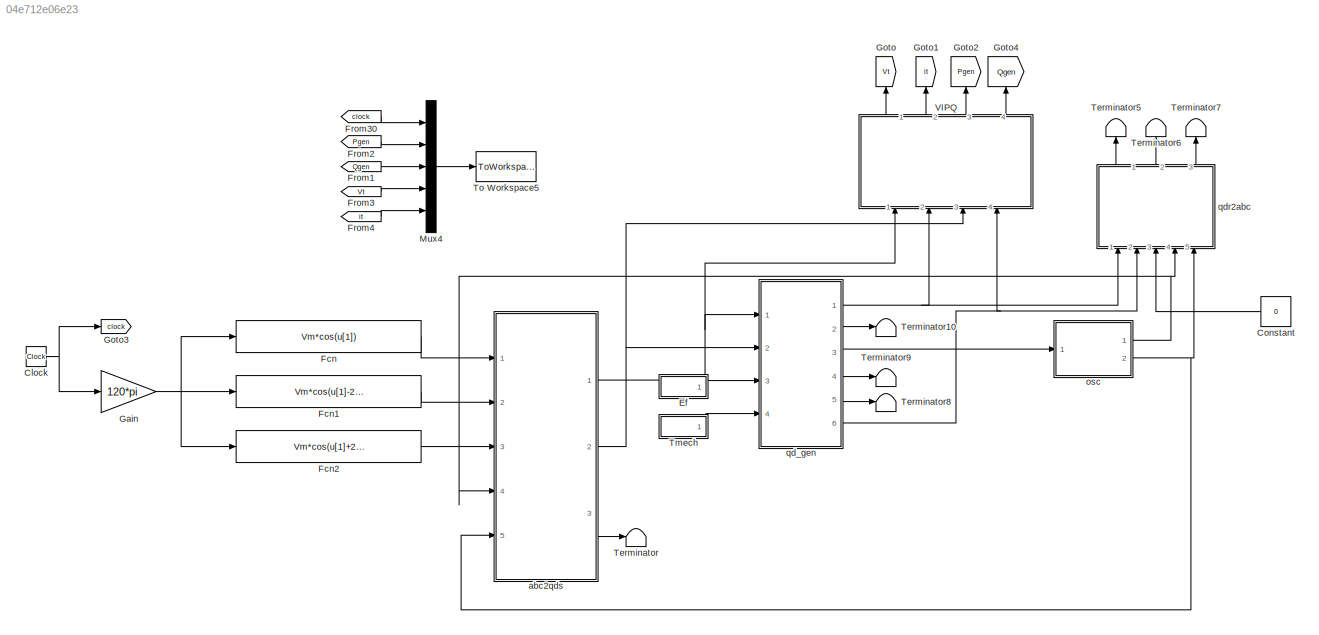
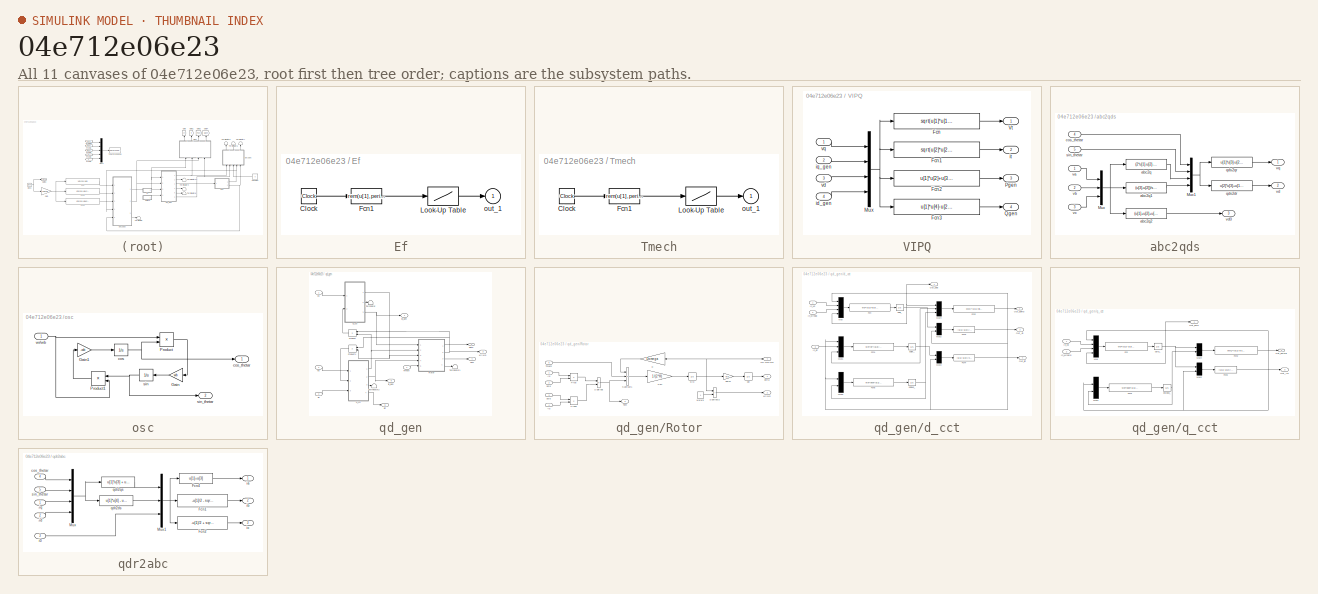
[diagram: thumbnail index - all 11 canvases of the model, root first then tree order]
MODEL slx_04e712e06e23
KIND model
CONFIG AbsTol = auto
CONFIG EnableMultiTasking = off
CONFIG FixedStep = auto
CONFIG MaxStep = 10e-4
CONFIG MinStep = auto
CONFIG RelTol = 1e-3
CONFIG SampleTimeConstraint = Unconstrained
CONFIG Solver = VariableStepAuto
CONFIG SolverName = VariableStepAuto
CONFIG StartTime = 0.0
CONFIG StopTime = 5
BLOCK [Clock] Clock
BLOCK [Constant] Constant
  NameLocation = top
  Value = 0
BLOCK [SubSystem] Ef
  Ports = [0, 1]
  RequestExecContextInheritance = off
BLOCK [Clock] Ef/Clock
BLOCK [Fcn] Ef/Fcn1
  Expr = rem(u[1],period)
BLOCK [Lookup] Ef/Look-Up Table
  InputValues = rep_seq_t
  Table = rep_seq_y
BLOCK [Outport] Ef/out_1
  InitialOutput = 0
BLOCK [Fcn] Fcn
  Expr = Vm*cos(u[1])
BLOCK [Fcn] Fcn1
  Expr = Vm*cos(u[1]-2*pi/3)
BLOCK [Fcn] Fcn2
  Expr = Vm*cos(u[1]+2*pi/3)
BLOCK [From] From1
  CloseFcn = tagdialog Close
  GotoTag = Qgen
BLOCK [From] From2
  CloseFcn = tagdialog Close
  GotoTag = Pgen
BLOCK [From] From3
  CloseFcn = tagdialog Close
  GotoTag = Vt
BLOCK [From] From30
  CloseFcn = tagdialog Close
  GotoTag = clock
BLOCK [From] From4
  CloseFcn = tagdialog Close
  GotoTag = it
BLOCK [Gain] Gain
  Gain = 120*pi
BLOCK [Goto] Goto
  GotoTag = Vt
  NameLocation = right
BLOCK [Goto] Goto1
  GotoTag = it
  NameLocation = right
BLOCK [Goto] Goto2
  GotoTag = Pgen
  NameLocation = right
BLOCK [Goto] Goto3
  GotoTag = clock
BLOCK [Goto] Goto4
  GotoTag = Qgen
  NameLocation = right
BLOCK [Mux] Mux4
  DisplayOption = bar
  Inputs = 5
  Ports = [5, 1]
BLOCK [Terminator] Terminator
BLOCK [Terminator] Terminator10
BLOCK [Terminator] Terminator5
  NameLocation = right
BLOCK [Terminator] Terminator6
  NameLocation = right
BLOCK [Terminator] Terminator7
  NameLocation = right
BLOCK [Terminator] Terminator8
BLOCK [Terminator] Terminator9
BLOCK [SubSystem] Tmech
  Ports = [0, 1]
  RequestExecContextInheritance = off
BLOCK [Clock] Tmech/Clock
BLOCK [Fcn] Tmech/Fcn1
  Expr = rem(u[1],period)
BLOCK [Lookup] Tmech/Look-Up Table
  InputValues = rep_seq_t
  Table = rep_seq_y
BLOCK [Outport] Tmech/out_1
  InitialOutput = 0
BLOCK [ToWorkspace] To Workspace5
  MaxDataPoints = inf
  Ports = [1]
  SampleTime = -1
  VariableName = salida
BLOCK [SubSystem] VIPQ
  NameLocation = right
  Ports = [4, 4]
  RequestExecContextInheritance = off
BLOCK [Fcn] VIPQ/Fcn
  Expr = sqrt(u[1]*u[1]+u[3]*u[3])
BLOCK [Fcn] VIPQ/Fcn1
  Expr = sqrt(u[2]*u[2]+u[4]*u[4])
BLOCK [Fcn] VIPQ/Fcn2
  Expr = u[1]*u[2]+u[3]*u[4]
BLOCK [Fcn] VIPQ/Fcn3
  Expr = u[1]*u[4]-u[2]*u[3]
BLOCK [Mux] VIPQ/Mux
  DisplayOption = bar
  Ports = [4, 1]
BLOCK [Outport] VIPQ/Pgen
  Port = 3
BLOCK [Outport] VIPQ/Qgen
  Port = 4
BLOCK [Outport] VIPQ/Vt
BLOCK [Inport] VIPQ/id_gen
  Port = 4
BLOCK [Inport] VIPQ/iq_gen
  Port = 2
BLOCK [Outport] VIPQ/it
  Port = 2
BLOCK [Inport] VIPQ/vd
  Port = 3
BLOCK [Inport] VIPQ/vq
BLOCK [SubSystem] abc2qds
  Ports = [5, 3]
  RequestExecContextInheritance = off
BLOCK [Mux] abc2qds/Mux
  DisplayOption = bar
  Inputs = 3
  Ports = [3, 1]
BLOCK [Mux] abc2qds/Mux1
  DisplayOption = bar
  Ports = [4, 1]
BLOCK [Fcn] abc2qds/abc2q
  Expr = (2*u[1]-u[2]-u[3])/3
BLOCK [Fcn] abc2qds/abc2q1
  Expr = (u[3]-u[2])/sqrt(3)
BLOCK [Fcn] abc2qds/abc2q2
  Expr = (u[1]+u[2]+u[3])/3
BLOCK [Inport] abc2qds/cos_thetar
  Port = 4
BLOCK [Fcn] abc2qds/qds2dr
  Expr = u[2]*u[3]+u[1]*u[4]
BLOCK [Fcn] abc2qds/qds2qr
  Expr = u[1]*u[3]-u[2]*u[4]
BLOCK [Inport] abc2qds/sin_thetar
  Port = 5
BLOCK [Inport] abc2qds/va
BLOCK [Inport] abc2qds/vb
  Port = 2
BLOCK [Inport] abc2qds/vc
  Port = 3
BLOCK [Outport] abc2qds/vd
  Port = 2
BLOCK [Outport] abc2qds/vd0
  Port = 3
BLOCK [Outport] abc2qds/vq
BLOCK [SubSystem] osc
  Ports = [1, 2]
  RequestExecContextInheritance = off
BLOCK [Gain] osc/Gain
  Gain = wb
  NameLocation = top
BLOCK [Gain] osc/Gain1
  Gain = -wb
  NameLocation = top
BLOCK [Product] osc/Product
  Ports = [2, 1]
BLOCK [Product] osc/Product1
  Ports = [2, 1]
BLOCK [Integrator] osc/cos
  InitialCondition = cos(thetaro)
  Ports = [1, 1]
BLOCK [Outport] osc/cos_thetar
BLOCK [Integrator] osc/sin
  InitialCondition = sin(thetaro)
  Ports = [1, 1]
BLOCK [Outport] osc/sin_thetar
  Port = 2
BLOCK [Inport] osc/wr//wb
BLOCK [SubSystem] qd_gen
  Ports = [4, 6]
  RequestExecContextInheritance = off
BLOCK [Inport] qd_gen/Ef
  Port = 3
BLOCK [Product] qd_gen/Product
  Ports = [2, 1]
BLOCK [Product] qd_gen/Product1
  Ports = [2, 1]
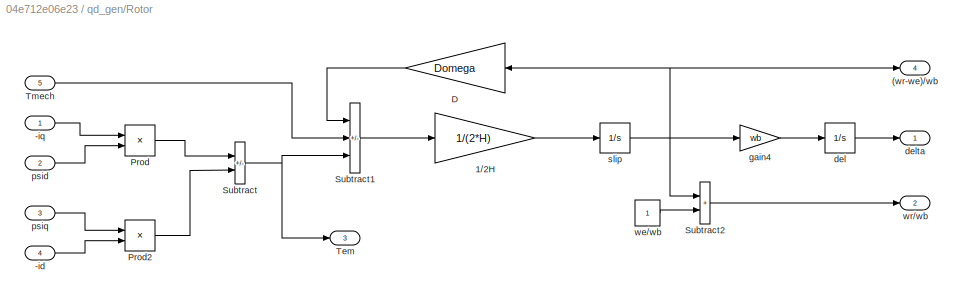
BLOCK [SubSystem] qd_gen/Rotor
  Ports = [5, 4]
  RequestExecContextInheritance = off
BLOCK [Outport] qd_gen/Rotor/(wr-we)//wb
  Port = 4
BLOCK [Inport] qd_gen/Rotor/-id
  Port = 4
BLOCK [Inport] qd_gen/Rotor/-iq
BLOCK [Gain] qd_gen/Rotor/1//2H
  Gain = 1/(2*H)
BLOCK [Gain] qd_gen/Rotor/D
  Gain = Domega
  NameLocation = top
BLOCK [Product] qd_gen/Rotor/Prod
  Ports = [2, 1]
BLOCK [Product] qd_gen/Rotor/Prod2
  Ports = [2, 1]
BLOCK [Sum] qd_gen/Rotor/Subtract
  IconShape = rectangular
  Inputs = -+
  Ports = [2, 1]
BLOCK [Sum] qd_gen/Rotor/Subtract1
  IconShape = rectangular
  Inputs = -++
  Ports = [3, 1]
BLOCK [Sum] qd_gen/Rotor/Subtract2
  IconShape = rectangular
  Ports = [2, 1]
BLOCK [Outport] qd_gen/Rotor/Tem
  Port = 3
BLOCK [Inport] qd_gen/Rotor/Tmech
  Port = 5
BLOCK [Integrator] qd_gen/Rotor/del
  InitialCondition = delto
  Ports = [1, 1]
BLOCK [Outport] qd_gen/Rotor/delta
BLOCK [Gain] qd_gen/Rotor/gain4
  Gain = wb
BLOCK [Inport] qd_gen/Rotor/psid
  Port = 2
BLOCK [Inport] qd_gen/Rotor/psiq
  Port = 3
BLOCK [Integrator] qd_gen/Rotor/slip
  Ports = [1, 1]
BLOCK [Constant] qd_gen/Rotor/we//wb
BLOCK [Outport] qd_gen/Rotor/wr//wb
  Port = 2
BLOCK [Outport] qd_gen/Tem
  Port = 4
BLOCK [Terminator] qd_gen/Terminator
BLOCK [Terminator] qd_gen/Terminator1
BLOCK [Terminator] qd_gen/Terminator2
BLOCK [Inport] qd_gen/Tmech
  Port = 4
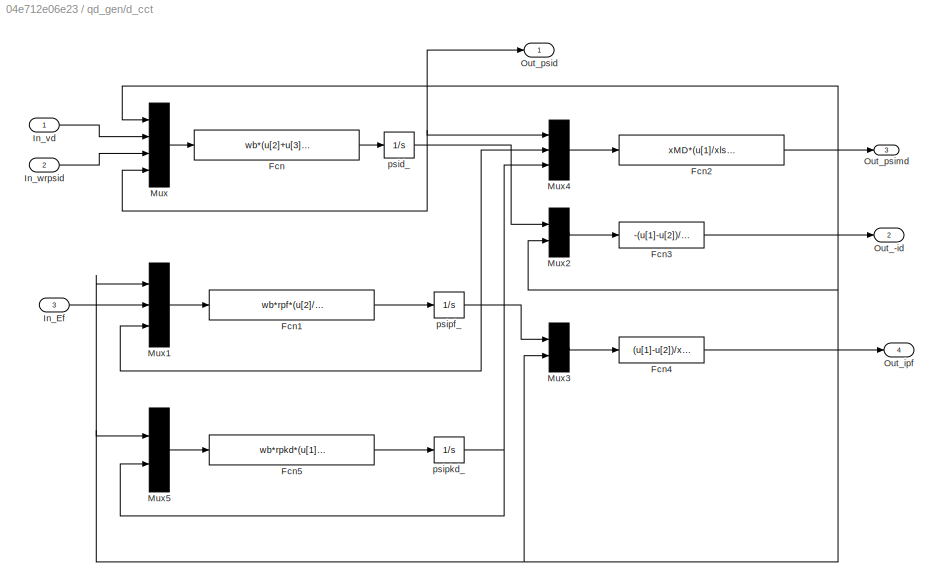
BLOCK [SubSystem] qd_gen/d_cct
  Ports = [3, 4]
  RequestExecContextInheritance = off
BLOCK [Fcn] qd_gen/d_cct/Fcn
  Expr = wb*(u[2]+u[3]+(rs/xls)*(u[1]-u[4]))
BLOCK [Fcn] qd_gen/d_cct/Fcn1
  Expr = wb*rpf*(u[2]/xmd+(u[1]-u[3])/xplf)
BLOCK [Fcn] qd_gen/d_cct/Fcn2
  Expr = xMD*(u[1]/xls+u[2]/xplf+u[3]/xplkd)
BLOCK [Fcn] qd_gen/d_cct/Fcn3
  Expr = -(u[1]-u[2])/xls
BLOCK [Fcn] qd_gen/d_cct/Fcn4
  Expr = (u[1]-u[2])/xplf
BLOCK [Fcn] qd_gen/d_cct/Fcn5
  Expr = wb*rpkd*(u[1]-u[2])/xplkd
BLOCK [Inport] qd_gen/d_cct/In_Ef
  Port = 3
BLOCK [Inport] qd_gen/d_cct/In_vd
BLOCK [Inport] qd_gen/d_cct/In_wrpsid
  Port = 2
BLOCK [Mux] qd_gen/d_cct/Mux
  Ports = [4, 1]
BLOCK [Mux] qd_gen/d_cct/Mux1
  Inputs = 3
  Ports = [3, 1]
BLOCK [Mux] qd_gen/d_cct/Mux2
  Inputs = 2
  Ports = [2, 1]
BLOCK [Mux] qd_gen/d_cct/Mux3
  Inputs = 2
  Ports = [2, 1]
BLOCK [Mux] qd_gen/d_cct/Mux4
  Inputs = 3
  Ports = [3, 1]
BLOCK [Mux] qd_gen/d_cct/Mux5
  Inputs = 2
  Ports = [2, 1]
BLOCK [Outport] qd_gen/d_cct/Out_-id
  Port = 2
BLOCK [Outport] qd_gen/d_cct/Out_ipf
  Port = 4
BLOCK [Outport] qd_gen/d_cct/Out_psid
BLOCK [Outport] qd_gen/d_cct/Out_psimd
  Port = 3
BLOCK [Integrator] qd_gen/d_cct/psid_
  InitialCondition = Psido
  Ports = [1, 1]
BLOCK [Integrator] qd_gen/d_cct/psipf_
  InitialCondition = Psifo
  Ports = [1, 1]
BLOCK [Integrator] qd_gen/d_cct/psipkd_
  InitialCondition = Psikdo
  Ports = [1, 1]
BLOCK [Outport] qd_gen/delta
  Port = 2
BLOCK [Outport] qd_gen/id_gen
  Port = 6
BLOCK [Outport] qd_gen/ipf
  Port = 5
BLOCK [Outport] qd_gen/iq_gen
BLOCK [SubSystem] qd_gen/q_cct
  Ports = [2, 3]
  RequestExecContextInheritance = off
BLOCK [Fcn] qd_gen/q_cct/Fcn
  Expr = wb*(u[2]-u[3]+(rs/xls)*(u[1]-u[4]))
BLOCK [Fcn] qd_gen/q_cct/Fcn1
  Expr = wb*rpkq*(u[1]-u[2])/xplkq
BLOCK [Fcn] qd_gen/q_cct/Fcn2
  Expr = xMQ*(u[1]/xls+u[2]/xplkq)
BLOCK [Fcn] qd_gen/q_cct/Fcn3
  Expr = -(u[1]-u[2])/xls
BLOCK [Inport] qd_gen/q_cct/In_vq
BLOCK [Inport] qd_gen/q_cct/In_wrpsid
  Port = 2
BLOCK [Mux] qd_gen/q_cct/Mux
  Ports = [4, 1]
BLOCK [Mux] qd_gen/q_cct/Mux1
  Inputs = 2
  Ports = [2, 1]
BLOCK [Mux] qd_gen/q_cct/Mux2
  Inputs = 2
  Ports = [2, 1]
BLOCK [Mux] qd_gen/q_cct/Mux4
  Inputs = 2
  Ports = [2, 1]
BLOCK [Outport] qd_gen/q_cct/Out_-iq
  Port = 3
BLOCK [Outport] qd_gen/q_cct/Out_psimq
  Port = 2
BLOCK [Outport] qd_gen/q_cct/Out_psiq
BLOCK [Integrator] qd_gen/q_cct/psipkq_
  InitialCondition = Psikqo
  Ports = [1, 1]
BLOCK [Integrator] qd_gen/q_cct/psiq_
  InitialCondition = Psiqo
  Ports = [1, 1]
BLOCK [Inport] qd_gen/vd
  Port = 2
BLOCK [Inport] qd_gen/vq
BLOCK [Outport] qd_gen/wr//wb
  Port = 3
BLOCK [SubSystem] qdr2abc
  NameLocation = right
  Ports = [5, 3]
  RequestExecContextInheritance = off
BLOCK [Inport] qdr2abc/-id
  Port = 2
BLOCK [Inport] qdr2abc/-iq
BLOCK [Fcn] qdr2abc/Fcn1
  Expr = -u[1]/2 - sqrt(3)*u[2]/2+u[3]
BLOCK [Fcn] qdr2abc/Fcn2
  Expr = -u[1]/2 + sqrt(3)*u[2]/2+u[3]
BLOCK [Fcn] qdr2abc/Fcn4
  Expr = u[1]+u[3]
BLOCK [Mux] qdr2abc/Mux
  DisplayOption = bar
  Ports = [4, 1]
BLOCK [Mux] qdr2abc/Mux1
  DisplayOption = bar
  Inputs = 3
  Ports = [3, 1]
BLOCK [Inport] qdr2abc/cos_thetar
  Port = 4
BLOCK [Inport] qdr2abc/i0
  Port = 3
BLOCK [Outport] qdr2abc/ia
BLOCK [Outport] qdr2abc/ib
  Port = 2
BLOCK [Outport] qdr2abc/ic
  Port = 3
BLOCK [Fcn] qdr2abc/qdr2ds
  Expr = u[1]*u[4] - u[2]*u[3]
BLOCK [Fcn] qdr2abc/qdr2qs
  Expr = u[1]*u[3] + u[2]*u[4]
BLOCK [Inport] qdr2abc/sin_thetar
  Port = 5
NET Clock:1 -> Gain:1, Goto3:1
LINE Constant:1 -> qdr2abc:3
LINE Ef/Clock:1 -> Ef/Fcn1:1
LINE Ef/Fcn1:1 -> Ef/Look-Up Table:1
LINE Ef/Look-Up Table:1 -> Ef/out_1:1
LINE Ef:1 -> qd_gen:3
LINE Fcn1:1 -> abc2qds:2
LINE Fcn2:1 -> abc2qds:3
LINE Fcn:1 -> abc2qds:1
LINE From1:1 -> Mux4:3
LINE From2:1 -> Mux4:2
LINE From30:1 -> Mux4:1
LINE From3:1 -> Mux4:4
LINE From4:1 -> Mux4:5
NET Gain:1 -> Fcn1:1, Fcn2:1, Fcn:1
LINE Mux4:1 -> To Workspace5:1
LINE Tmech/Clock:1 -> Tmech/Fcn1:1
LINE Tmech/Fcn1:1 -> Tmech/Look-Up Table:1
LINE Tmech/Look-Up Table:1 -> Tmech/out_1:1
LINE Tmech:1 -> qd_gen:4
LINE VIPQ/Fcn1:1 -> VIPQ/it:1
LINE VIPQ/Fcn2:1 -> VIPQ/Pgen:1
LINE VIPQ/Fcn3:1 -> VIPQ/Qgen:1
LINE VIPQ/Fcn:1 -> VIPQ/Vt:1
NET VIPQ/Mux:1 -> VIPQ/Fcn1:1, VIPQ/Fcn2:1, VIPQ/Fcn3:1, VIPQ/Fcn:1
LINE VIPQ/id_gen:1 -> VIPQ/Mux:4
LINE VIPQ/iq_gen:1 -> VIPQ/Mux:2
LINE VIPQ/vd:1 -> VIPQ/Mux:3
LINE VIPQ/vq:1 -> VIPQ/Mux:1
LINE VIPQ:1 -> Goto:1
LINE VIPQ:2 -> Goto1:1
LINE VIPQ:3 -> Goto2:1
LINE VIPQ:4 -> Goto4:1
NET abc2qds/Mux1:1 -> abc2qds/qds2dr:1, abc2qds/qds2qr:1
NET abc2qds/Mux:1 -> abc2qds/abc2q1:1, abc2qds/abc2q2:1, abc2qds/abc2q:1
LINE abc2qds/abc2q1:1 -> abc2qds/Mux1:4
LINE abc2qds/abc2q2:1 -> abc2qds/vd0:1
LINE abc2qds/abc2q:1 -> abc2qds/Mux1:3
LINE abc2qds/cos_thetar:1 -> abc2qds/Mux1:1
LINE abc2qds/qds2dr:1 -> abc2qds/vd:1
LINE abc2qds/qds2qr:1 -> abc2qds/vq:1
LINE abc2qds/sin_thetar:1 -> abc2qds/Mux1:2
LINE abc2qds/va:1 -> abc2qds/Mux:1
LINE abc2qds/vb:1 -> abc2qds/Mux:2
LINE abc2qds/vc:1 -> abc2qds/Mux:3
NET abc2qds:1 -> VIPQ:1, qd_gen:1
NET abc2qds:2 -> VIPQ:3, qd_gen:2
LINE abc2qds:3 -> Terminator:1
LINE osc/Gain1:1 -> osc/cos:1
LINE osc/Gain:1 -> osc/sin:1
LINE osc/Product1:1 -> osc/Gain1:1
LINE osc/Product:1 -> osc/Gain:1
NET osc/cos:1 -> osc/Product:2, osc/cos_thetar:1
NET osc/sin:1 -> osc/Product1:1, osc/sin_thetar:1
NET osc/wr//wb:1 -> osc/Product1:2, osc/Product:1
NET osc:1 -> abc2qds:4, qdr2abc:4
NET osc:2 -> abc2qds:5, qdr2abc:5
LINE qd_gen/Ef:1 -> qd_gen/d_cct:3
LINE qd_gen/Product1:1 -> qd_gen/d_cct:2
LINE qd_gen/Product:1 -> qd_gen/q_cct:2
LINE qd_gen/Rotor/-id:1 -> qd_gen/Rotor/Prod2:2
LINE qd_gen/Rotor/-iq:1 -> qd_gen/Rotor/Prod:1
LINE qd_gen/Rotor/1//2H:1 -> qd_gen/Rotor/slip:1
LINE qd_gen/Rotor/D:1 -> qd_gen/Rotor/Subtract1:1
LINE qd_gen/Rotor/Prod2:1 -> qd_gen/Rotor/Subtract:2
LINE qd_gen/Rotor/Prod:1 -> qd_gen/Rotor/Subtract:1
LINE qd_gen/Rotor/Subtract1:1 -> qd_gen/Rotor/1//2H:1
LINE qd_gen/Rotor/Subtract2:1 -> qd_gen/Rotor/wr//wb:1
NET qd_gen/Rotor/Subtract:1 -> qd_gen/Rotor/Subtract1:3, qd_gen/Rotor/Tem:1
LINE qd_gen/Rotor/Tmech:1 -> qd_gen/Rotor/Subtract1:2
LINE qd_gen/Rotor/del:1 -> qd_gen/Rotor/delta:1
LINE qd_gen/Rotor/gain4:1 -> qd_gen/Rotor/del:1
LINE qd_gen/Rotor/psid:1 -> qd_gen/Rotor/Prod:2
LINE qd_gen/Rotor/psiq:1 -> qd_gen/Rotor/Prod2:1
NET qd_gen/Rotor/slip:1 -> qd_gen/Rotor/(wr-we)//wb:1, qd_gen/Rotor/D:1, qd_gen/Rotor/Subtract2:1, qd_gen/Rotor/gain4:1
LINE qd_gen/Rotor/we//wb:1 -> qd_gen/Rotor/Subtract2:2
LINE qd_gen/Rotor:1 -> qd_gen/delta:1
NET qd_gen/Rotor:2 -> qd_gen/Product1:1, qd_gen/Product:1, qd_gen/wr//wb:1
LINE qd_gen/Rotor:3 -> qd_gen/Tem:1
LINE qd_gen/Rotor:4 -> qd_gen/Terminator1:1
LINE qd_gen/Tmech:1 -> qd_gen/Rotor:5
LINE qd_gen/d_cct/Fcn1:1 -> qd_gen/d_cct/psipf_:1
NET qd_gen/d_cct/Fcn2:1 -> qd_gen/d_cct/Mux1:1, qd_gen/d_cct/Mux2:2, qd_gen/d_cct/Mux3:2, qd_gen/d_cct/Mux5:1, qd_gen/d_cct/Mux:1, qd_gen/d_cct/Out_psimd:1
LINE qd_gen/d_cct/Fcn3:1 -> qd_gen/d_cct/Out_-id:1
LINE qd_gen/d_cct/Fcn4:1 -> qd_gen/d_cct/Out_ipf:1
LINE qd_gen/d_cct/Fcn5:1 -> qd_gen/d_cct/psipkd_:1
LINE qd_gen/d_cct/Fcn:1 -> qd_gen/d_cct/psid_:1
LINE qd_gen/d_cct/In_Ef:1 -> qd_gen/d_cct/Mux1:2
LINE qd_gen/d_cct/In_vd:1 -> qd_gen/d_cct/Mux:2
LINE qd_gen/d_cct/In_wrpsid:1 -> qd_gen/d_cct/Mux:3
LINE qd_gen/d_cct/Mux1:1 -> qd_gen/d_cct/Fcn1:1
LINE qd_gen/d_cct/Mux2:1 -> qd_gen/d_cct/Fcn3:1
LINE qd_gen/d_cct/Mux3:1 -> qd_gen/d_cct/Fcn4:1
LINE qd_gen/d_cct/Mux4:1 -> qd_gen/d_cct/Fcn2:1
LINE qd_gen/d_cct/Mux5:1 -> qd_gen/d_cct/Fcn5:1
LINE qd_gen/d_cct/Mux:1 -> qd_gen/d_cct/Fcn:1
NET qd_gen/d_cct/psid_:1 -> qd_gen/d_cct/Mux2:1, qd_gen/d_cct/Mux4:1, qd_gen/d_cct/Mux:4, qd_gen/d_cct/Out_psid:1
NET qd_gen/d_cct/psipf_:1 -> qd_gen/d_cct/Mux1:3, qd_gen/d_cct/Mux3:1, qd_gen/d_cct/Mux4:2
NET qd_gen/d_cct/psipkd_:1 -> qd_gen/d_cct/Mux4:3, qd_gen/d_cct/Mux5:2
NET qd_gen/d_cct:1 -> qd_gen/Product:2, qd_gen/Rotor:2
NET qd_gen/d_cct:2 -> qd_gen/Rotor:4, qd_gen/id_gen:1
LINE qd_gen/d_cct:3 -> qd_gen/Terminator2:1
LINE qd_gen/d_cct:4 -> qd_gen/ipf:1
LINE qd_gen/q_cct/Fcn1:1 -> qd_gen/q_cct/psipkq_:1
NET qd_gen/q_cct/Fcn2:1 -> qd_gen/q_cct/Mux1:1, qd_gen/q_cct/Mux2:2, qd_gen/q_cct/Mux:1, qd_gen/q_cct/Out_psimq:1
LINE qd_gen/q_cct/Fcn3:1 -> qd_gen/q_cct/Out_-iq:1
LINE qd_gen/q_cct/Fcn:1 -> qd_gen/q_cct/psiq_:1
LINE qd_gen/q_cct/In_vq:1 -> qd_gen/q_cct/Mux:2
LINE qd_gen/q_cct/In_wrpsid:1 -> qd_gen/q_cct/Mux:3
LINE qd_gen/q_cct/Mux1:1 -> qd_gen/q_cct/Fcn1:1
LINE qd_gen/q_cct/Mux2:1 -> qd_gen/q_cct/Fcn3:1
LINE qd_gen/q_cct/Mux4:1 -> qd_gen/q_cct/Fcn2:1
LINE qd_gen/q_cct/Mux:1 -> qd_gen/q_cct/Fcn:1
NET qd_gen/q_cct/psipkq_:1 -> qd_gen/q_cct/Mux1:2, qd_gen/q_cct/Mux4:2
NET qd_gen/q_cct/psiq_:1 -> qd_gen/q_cct/Mux2:1, qd_gen/q_cct/Mux4:1, qd_gen/q_cct/Mux:4, qd_gen/q_cct/Out_psiq:1
NET qd_gen/q_cct:1 -> qd_gen/Product1:2, qd_gen/Rotor:3
LINE qd_gen/q_cct:2 -> qd_gen/Terminator:1
NET qd_gen/q_cct:3 -> qd_gen/Rotor:1, qd_gen/iq_gen:1
LINE qd_gen/vd:1 -> qd_gen/d_cct:1
LINE qd_gen/vq:1 -> qd_gen/q_cct:1
NET qd_gen:1 -> VIPQ:2, qdr2abc:1
LINE qd_gen:2 -> Terminator10:1
LINE qd_gen:3 -> osc:1
LINE qd_gen:4 -> Terminator9:1
LINE qd_gen:5 -> Terminator8:1
NET qd_gen:6 -> VIPQ:4, qdr2abc:2
LINE qdr2abc/-id:1 -> qdr2abc/Mux:4
LINE qdr2abc/-iq:1 -> qdr2abc/Mux:3
LINE qdr2abc/Fcn1:1 -> qdr2abc/ib:1
LINE qdr2abc/Fcn2:1 -> qdr2abc/ic:1
LINE qdr2abc/Fcn4:1 -> qdr2abc/ia:1
NET qdr2abc/Mux1:1 -> qdr2abc/Fcn1:1, qdr2abc/Fcn2:1, qdr2abc/Fcn4:1
NET qdr2abc/Mux:1 -> qdr2abc/qdr2ds:1, qdr2abc/qdr2qs:1
LINE qdr2abc/cos_thetar:1 -> qdr2abc/Mux:1
LINE qdr2abc/i0:1 -> qdr2abc/Mux1:3
LINE qdr2abc/qdr2ds:1 -> qdr2abc/Mux1:2
LINE qdr2abc/qdr2qs:1 -> qdr2abc/Mux1:1
LINE qdr2abc/sin_thetar:1 -> qdr2abc/Mux:2
LINE qdr2abc:1 -> Terminator5:1
LINE qdr2abc:2 -> Terminator6:1
LINE qdr2abc:3 -> Terminator7:1
note: NET lines group one-source signal fan-out (src -> all destinations, sorted); 1:1 wires keep LINE
